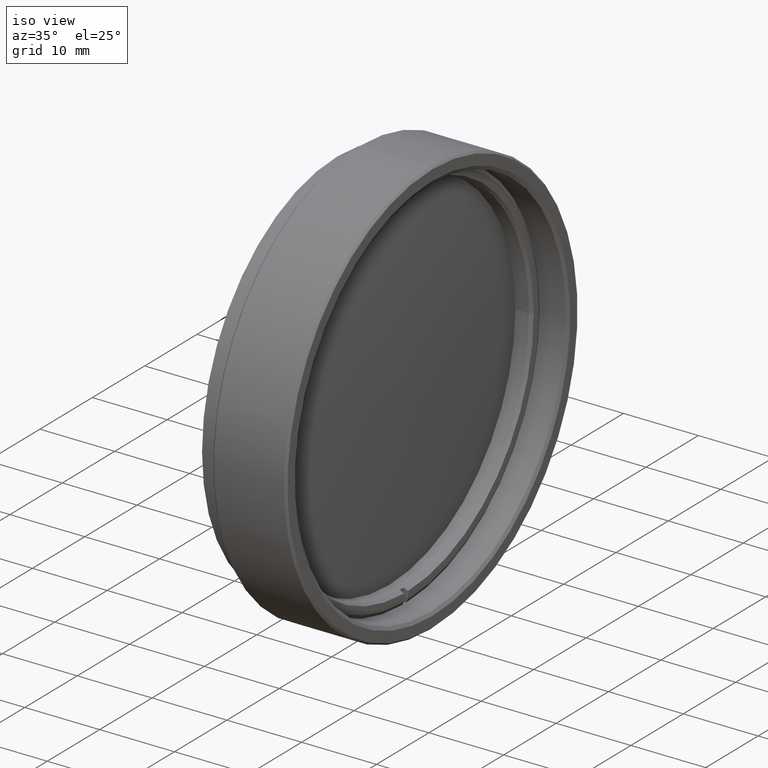
[diagram: clean part render]
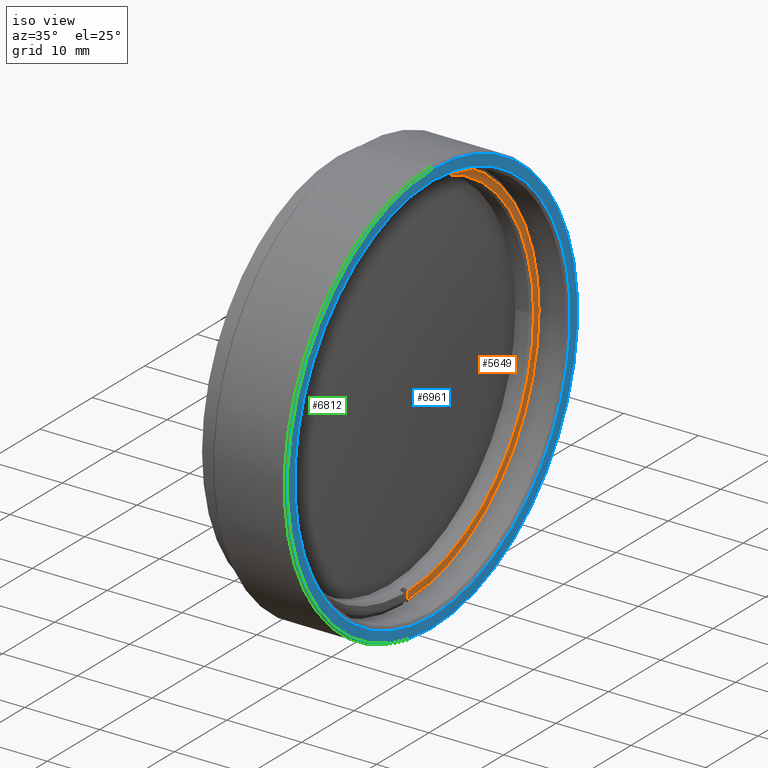
[diagram: same view with three faces highlighted in distinct colors, each labeled with its STEP entity id]
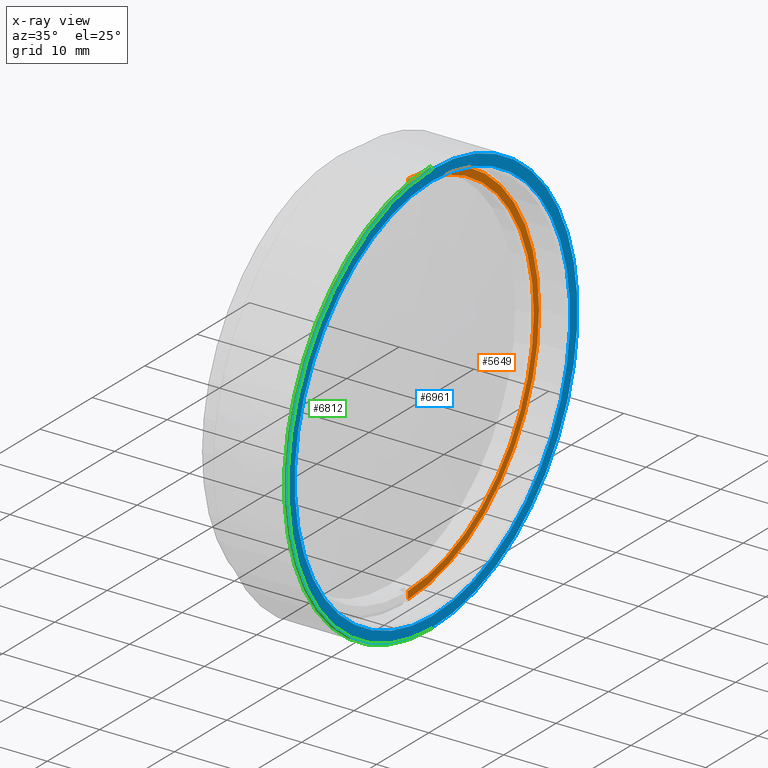
[diagram: x-ray of the same camera — body ghosted, the three highlighted faces saturated]
A machine part, iso view with three faces highlighted in distinct colors.
The next image is the same camera in x-ray (body ghosted, the three faces saturated) — at least one of them is partly hidden behind the body in this view.
Their STEP definitions:

[orange] entity #5649 — the highlighted planar face has unit normal (-1, 0, 0).
#250 = VECTOR ( 'NONE', #1980, 1000.000000000000000 ) ;
#276 = AXIS2_PLACEMENT_3D ( 'NONE', #3571, #8038, #3666 ) ;
#497 = CARTESIAN_POINT ( 'NONE',  ( 2.933388215621654600, 0.3809999999999906200, 25.84449999999999600 ) ) ;
#1075 = CARTESIAN_POINT ( 'NONE',  ( 2.933388215621654600, 0.3809999999999906200, 25.40170194701773100 ) ) ;
#1366 = DIRECTION ( 'NONE',  ( -1.000000000000000000, 5.420709834234173200E-020, 6.800302525506090200E-021 ) ) ;
#1582 = ORIENTED_EDGE ( 'NONE', *, *, #3202, .F. ) ;
#1584 = CARTESIAN_POINT ( 'NONE',  ( 2.933388215621654600, 0.3809999999999906200, 24.38102325580288400 ) ) ;
#1649 = VECTOR ( 'NONE', #6480, 1000.000000000000000 ) ;
#1690 = CIRCLE ( 'NONE', #5189, 25.40455909487753100 ) ;
#1796 = EDGE_CURVE ( 'NONE', #5270, #5648, #7475, .T. ) ;
#1980 = DIRECTION ( 'NONE',  ( 6.800302525506088700E-021, -1.084202172485504400E-019, 1.000000000000000000 ) ) ;
#2180 = CARTESIAN_POINT ( 'NONE',  ( 2.933388215621654600, 0.3809999999999906200, -24.38102325580289100 ) ) ;
#2329 = ORIENTED_EDGE ( 'NONE', *, *, #6035, .T. ) ;
#2461 = CIRCLE ( 'NONE', #3920, 24.38400000000002500 ) ;
#2740 = ORIENTED_EDGE ( 'NONE', *, *, #8519, .T. ) ;
#2760 = DIRECTION ( 'NONE',  ( 1.000000000000000000, -5.420709834234173200E-020, -6.800302525506090200E-021 ) ) ;
#3202 = EDGE_CURVE ( 'NONE', #5225, #4855, #7828, .T. ) ;
#3571 = CARTESIAN_POINT ( 'NONE',  ( 2.933388215621654600, -2.699148877917063200E-015, 25.84449999999999600 ) ) ;
#3666 = DIRECTION ( 'NONE',  ( -5.420709834234174400E-020, -1.000000000000000000, -1.084202172485504400E-019 ) ) ;
#3920 = AXIS2_PLACEMENT_3D ( 'NONE', #4155, #9286, #4897 ) ;
#4155 = CARTESIAN_POINT ( 'NONE',  ( 2.933388215621654600, -2.696346811612382700E-015, -4.029524877967330200E-015 ) ) ;
#4855 = VERTEX_POINT ( 'NONE', #1075 ) ;
#4897 = DIRECTION ( 'NONE',  ( 0.0000000000000000000, -1.000000000000000000, -1.084202172485402800E-019 ) ) ;
#5189 = AXIS2_PLACEMENT_3D ( 'NONE', #7139, #2760, #7870 ) ;
#5225 = VERTEX_POINT ( 'NONE', #1584 ) ;
#5270 = VERTEX_POINT ( 'NONE', #7605 ) ;
#5392 = CARTESIAN_POINT ( 'NONE',  ( 2.933388215621654600, 24.38400000000002200, -4.026881159389941800E-015 ) ) ;
#5521 = FACE_OUTER_BOUND ( 'NONE', #7387, .T. ) ;
#5620 = EDGE_CURVE ( 'NONE', #7183, #5648, #9188, .T. ) ;
#5648 = VERTEX_POINT ( 'NONE', #2180 ) ;
#5649 = ADVANCED_FACE ( 'NONE', ( #5521 ), #7295, .F. ) ;
#5749 = CARTESIAN_POINT ( 'NONE',  ( 2.933388215621654600, -2.696346811612382700E-015, -4.029524877967330200E-015 ) ) ;
#6035 = EDGE_CURVE ( 'NONE', #5270, #4855, #1690, .T. ) ;
#6480 = DIRECTION ( 'NONE',  ( 6.800302525506088700E-021, -1.084202172485504400E-019, 1.000000000000000000 ) ) ;
#6484 = DIRECTION ( 'NONE',  ( 0.0000000000000000000, -1.000000000000000000, -1.084202172485402800E-019 ) ) ;
#6508 = ORIENTED_EDGE ( 'NONE', *, *, #1796, .F. ) ;
#7139 = CARTESIAN_POINT ( 'NONE',  ( 2.933388215621654600, -2.696346811612382700E-015, -4.029524877967330200E-015 ) ) ;
#7183 = VERTEX_POINT ( 'NONE', #5392 ) ;
#7208 = CARTESIAN_POINT ( 'NONE',  ( 2.933388215621654600, 0.3809999999999906200, 25.84449999999999600 ) ) ;
#7295 = PLANE ( 'NONE',  #276 ) ;
#7387 = EDGE_LOOP ( 'NONE', ( #1582, #2740, #9308, #6508, #2329 ) ) ;
#7475 = LINE ( 'NONE', #7208, #1649 ) ;
#7605 = CARTESIAN_POINT ( 'NONE',  ( 2.933388215621654600, 0.3809999999999906200, -25.40170194701773800 ) ) ;
#7828 = LINE ( 'NONE', #497, #250 ) ;
#7870 = DIRECTION ( 'NONE',  ( 0.0000000000000000000, -1.000000000000000000, -1.084202172485635400E-019 ) ) ;
#8038 = DIRECTION ( 'NONE',  ( -1.000000000000000000, 5.420709834234174400E-020, 6.800302525506090200E-021 ) ) ;
#8333 = AXIS2_PLACEMENT_3D ( 'NONE', #5749, #1366, #6484 ) ;
#8519 = EDGE_CURVE ( 'NONE', #5225, #7183, #2461, .T. ) ;
#9188 = CIRCLE ( 'NONE', #8333, 24.38400000000002500 ) ;
#9286 = DIRECTION ( 'NONE',  ( -1.000000000000000000, 5.420709834234173200E-020, 6.800302525506090200E-021 ) ) ;
#9308 = ORIENTED_EDGE ( 'NONE', *, *, #5620, .T. ) ;

[blue] entity #6961 — the highlighted planar face has unit normal (-1, 0, -0).
#127 = EDGE_CURVE ( 'NONE', #8300, #6056, #8323, .T. ) ;
#723 = CARTESIAN_POINT ( 'NONE',  ( 6.477000000000000300, 0.0000000000000000000, 27.68600000000002500 ) ) ;
#876 = EDGE_LOOP ( 'NONE', ( #9318, #2247 ) ) ;
#1056 = CIRCLE ( 'NONE', #8063, 26.28444090512250500 ) ;
#1153 = CARTESIAN_POINT ( 'NONE',  ( 6.477000000000000300, 3.406110142468534700E-015, -27.68600000000002500 ) ) ;
#1818 = EDGE_LOOP ( 'NONE', ( #6134, #4098 ) ) ;
#2023 = DIRECTION ( 'NONE',  ( 1.000000000000000000, 0.0000000000000000000, 0.0000000000000000000 ) ) ;
#2226 = DIRECTION ( 'NONE',  ( 1.000000000000000000, 0.0000000000000000000, 0.0000000000000000000 ) ) ;
#2247 = ORIENTED_EDGE ( 'NONE', *, *, #2403, .T. ) ;
#2403 = EDGE_CURVE ( 'NONE', #6791, #5689, #8060, .T. ) ;
#2508 = AXIS2_PLACEMENT_3D ( 'NONE', #7271, #8013, #3640 ) ;
#2612 = FACE_BOUND ( 'NONE', #1818, .T. ) ;
#2839 = FACE_OUTER_BOUND ( 'NONE', #876, .T. ) ;
#2988 = CARTESIAN_POINT ( 'NONE',  ( 6.477000000000000300, 0.0000000000000000000, 0.0000000000000000000 ) ) ;
#3451 = EDGE_CURVE ( 'NONE', #6056, #8300, #1056, .T. ) ;
#3518 = CIRCLE ( 'NONE', #9217, 27.68600000000002500 ) ;
#3605 = DIRECTION ( 'NONE',  ( -1.000000000000000000, -0.0000000000000000000, -0.0000000000000000000 ) ) ;
#3640 = DIRECTION ( 'NONE',  ( -0.0000000000000000000, 0.0000000000000000000, 1.000000000000000000 ) ) ;
#3738 = DIRECTION ( 'NONE',  ( 0.0000000000000000000, 0.0000000000000000000, 1.000000000000000000 ) ) ;
#3850 = AXIS2_PLACEMENT_3D ( 'NONE', #7986, #3605, #8732 ) ;
#4098 = ORIENTED_EDGE ( 'NONE', *, *, #3451, .T. ) ;
#4508 = AXIS2_PLACEMENT_3D ( 'NONE', #6628, #2226, #7342 ) ;
#5689 = VERTEX_POINT ( 'NONE', #723 ) ;
#6056 = VERTEX_POINT ( 'NONE', #7165 ) ;
#6134 = ORIENTED_EDGE ( 'NONE', *, *, #127, .T. ) ;
#6423 = CARTESIAN_POINT ( 'NONE',  ( 6.477000000000000300, 0.0000000000000000000, 0.0000000000000000000 ) ) ;
#6548 = PLANE ( 'NONE',  #2508 ) ;
#6628 = CARTESIAN_POINT ( 'NONE',  ( 6.477000000000000300, 0.0000000000000000000, 0.0000000000000000000 ) ) ;
#6791 = VERTEX_POINT ( 'NONE', #1153 ) ;
#6961 = ADVANCED_FACE ( 'NONE', ( #2839, #2612 ), #6548, .F. ) ;
#7146 = DIRECTION ( 'NONE',  ( 0.0000000000000000000, 0.0000000000000000000, 1.000000000000000000 ) ) ;
#7165 = CARTESIAN_POINT ( 'NONE',  ( 6.477000000000000300, 3.218915642183603500E-015, 26.28444090512250500 ) ) ;
#7271 = CARTESIAN_POINT ( 'NONE',  ( 6.477000000000000300, 27.94000000000000100, 0.0000000000000000000 ) ) ;
#7342 = DIRECTION ( 'NONE',  ( 0.0000000000000000000, 0.0000000000000000000, 1.000000000000000000 ) ) ;
#7727 = EDGE_CURVE ( 'NONE', #5689, #6791, #3518, .T. ) ;
#7986 = CARTESIAN_POINT ( 'NONE',  ( 6.477000000000000300, 0.0000000000000000000, 0.0000000000000000000 ) ) ;
#8013 = DIRECTION ( 'NONE',  ( -1.000000000000000000, 0.0000000000000000000, -0.0000000000000000000 ) ) ;
#8060 = CIRCLE ( 'NONE', #4508, 27.68600000000002500 ) ;
#8063 = AXIS2_PLACEMENT_3D ( 'NONE', #2988, #8122, #3738 ) ;
#8122 = DIRECTION ( 'NONE',  ( -1.000000000000000000, -0.0000000000000000000, -0.0000000000000000000 ) ) ;
#8300 = VERTEX_POINT ( 'NONE', #8818 ) ;
#8323 = CIRCLE ( 'NONE', #3850, 26.28444090512250500 ) ;
#8732 = DIRECTION ( 'NONE',  ( 0.0000000000000000000, 0.0000000000000000000, 1.000000000000000000 ) ) ;
#8818 = CARTESIAN_POINT ( 'NONE',  ( 6.477000000000000300, 0.0000000000000000000, -26.28444090512250500 ) ) ;
#9217 = AXIS2_PLACEMENT_3D ( 'NONE', #6423, #2023, #7146 ) ;
#9318 = ORIENTED_EDGE ( 'NONE', *, *, #7727, .T. ) ;

[green] entity #6812 — the highlighted conical surface has half-angle 45 deg.
#91 = ORIENTED_EDGE ( 'NONE', *, *, #7727, .F. ) ;
#345 = VECTOR ( 'NONE', #479, 1000.000000000000100 ) ;
#469 = ORIENTED_EDGE ( 'NONE', *, *, #5419, .T. ) ;
#479 = DIRECTION ( 'NONE',  ( -0.7071067811865474600, 0.0000000000000000000, 0.7071067811865474600 ) ) ;
#723 = CARTESIAN_POINT ( 'NONE',  ( 6.477000000000000300, 0.0000000000000000000, 27.68600000000002500 ) ) ;
#1153 = CARTESIAN_POINT ( 'NONE',  ( 6.477000000000000300, 3.406110142468534700E-015, -27.68600000000002500 ) ) ;
#1233 = CARTESIAN_POINT ( 'NONE',  ( 6.223000000000023800, 0.0000000000000000000, 27.94000000000000100 ) ) ;
#1252 = VECTOR ( 'NONE', #8642, 1000.000000000000100 ) ;
#2023 = DIRECTION ( 'NONE',  ( 1.000000000000000000, 0.0000000000000000000, 0.0000000000000000000 ) ) ;
#2449 = CARTESIAN_POINT ( 'NONE',  ( 6.223000000000023800, 0.0000000000000000000, 0.0000000000000000000 ) ) ;
#2530 = LINE ( 'NONE', #1233, #345 ) ;
#2630 = CARTESIAN_POINT ( 'NONE',  ( 6.223000000000023800, 0.0000000000000000000, 0.0000000000000000000 ) ) ;
#3197 = DIRECTION ( 'NONE',  ( 0.0000000000000000000, 0.0000000000000000000, 1.000000000000000000 ) ) ;
#3518 = CIRCLE ( 'NONE', #9217, 27.68600000000002500 ) ;
#4030 = DIRECTION ( 'NONE',  ( -1.000000000000000000, -0.0000000000000000000, -0.0000000000000000000 ) ) ;
#5026 = AXIS2_PLACEMENT_3D ( 'NONE', #2449, #7566, #3197 ) ;
#5125 = LINE ( 'NONE', #5701, #1252 ) ;
#5419 = EDGE_CURVE ( 'NONE', #5689, #6930, #2530, .T. ) ;
#5689 = VERTEX_POINT ( 'NONE', #723 ) ;
#5701 = CARTESIAN_POINT ( 'NONE',  ( 6.223000000000023800, 3.421663156817704600E-015, -27.94000000000000100 ) ) ;
#5707 = VERTEX_POINT ( 'NONE', #6635 ) ;
#5816 = CARTESIAN_POINT ( 'NONE',  ( 6.223000000000023800, 0.0000000000000000000, 27.94000000000000100 ) ) ;
#6058 = EDGE_CURVE ( 'NONE', #6791, #5707, #5125, .T. ) ;
#6423 = CARTESIAN_POINT ( 'NONE',  ( 6.477000000000000300, 0.0000000000000000000, 0.0000000000000000000 ) ) ;
#6635 = CARTESIAN_POINT ( 'NONE',  ( 6.223000000000023800, 3.421663156817704600E-015, -27.94000000000000100 ) ) ;
#6711 = EDGE_CURVE ( 'NONE', #5707, #6930, #7397, .T. ) ;
#6720 = CONICAL_SURFACE ( 'NONE', #6987, 27.94000000000000100, 0.7853981633974482800 ) ;
#6730 = ORIENTED_EDGE ( 'NONE', *, *, #6058, .F. ) ;
#6791 = VERTEX_POINT ( 'NONE', #1153 ) ;
#6812 = ADVANCED_FACE ( 'NONE', ( #8896 ), #6720, .T. ) ;
#6930 = VERTEX_POINT ( 'NONE', #5816 ) ;
#6987 = AXIS2_PLACEMENT_3D ( 'NONE', #2630, #4030, #9227 ) ;
#7146 = DIRECTION ( 'NONE',  ( 0.0000000000000000000, 0.0000000000000000000, 1.000000000000000000 ) ) ;
#7397 = CIRCLE ( 'NONE', #5026, 27.94000000000000100 ) ;
#7566 = DIRECTION ( 'NONE',  ( -1.000000000000000000, -0.0000000000000000000, -0.0000000000000000000 ) ) ;
#7628 = EDGE_LOOP ( 'NONE', ( #6730, #91, #469, #7728 ) ) ;
#7727 = EDGE_CURVE ( 'NONE', #5689, #6791, #3518, .T. ) ;
#7728 = ORIENTED_EDGE ( 'NONE', *, *, #6711, .F. ) ;
#8642 = DIRECTION ( 'NONE',  ( -0.7071067811865474600, 8.659560562354932900E-017, -0.7071067811865474600 ) ) ;
#8896 = FACE_OUTER_BOUND ( 'NONE', #7628, .T. ) ;
#9217 = AXIS2_PLACEMENT_3D ( 'NONE', #6423, #2023, #7146 ) ;
#9227 = DIRECTION ( 'NONE',  ( 0.0000000000000000000, 0.0000000000000000000, 1.000000000000000000 ) ) ;